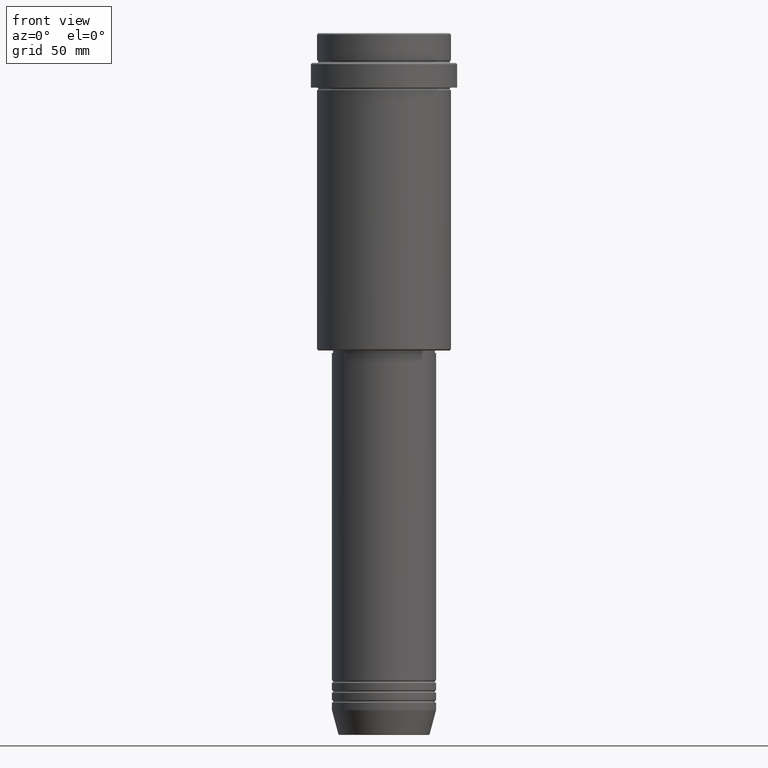
[diagram: clean part render]
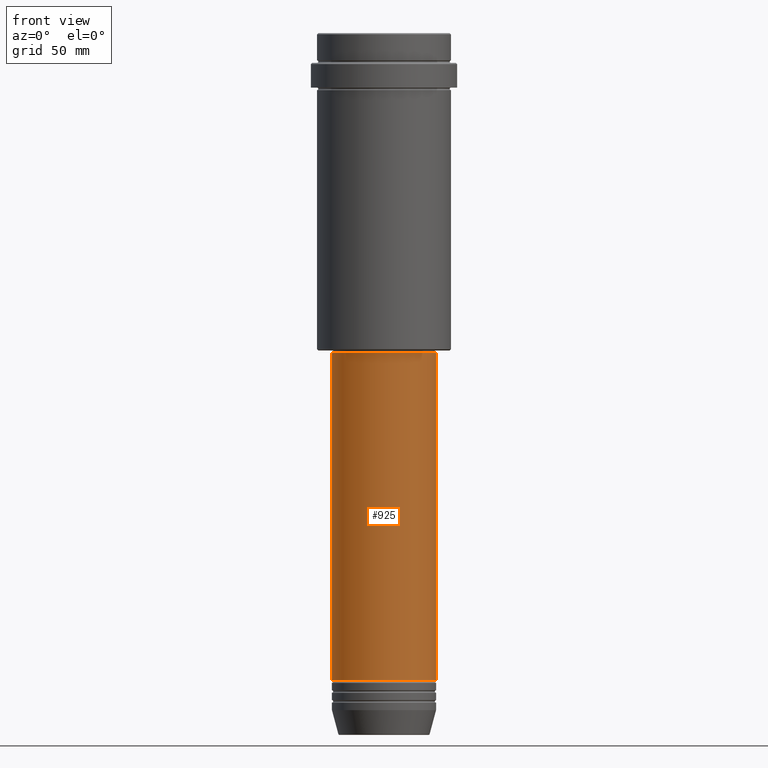
[diagram: same view with one face highlighted and labeled with its STEP entity id]
A machine part, front view. The second image highlights one B-rep face of the part: STEP entity #925.
In plain terms, the highlighted cylindrical surface (partial cylindrical patch) has radius 21 mm, axis along (-0, -0, 1).
Its self-contained STEP definition (entity closure, byte-faithful):
#67 = VECTOR ( 'NONE', #867, 1000.000000000000000 ) ;
#78 = ORIENTED_EDGE ( 'NONE', *, *, #741, .F. ) ;
#155 = CIRCLE ( 'NONE', #742, 21.00000000000000000 ) ;
#160 = CARTESIAN_POINT ( 'NONE',  ( -21.00000000000000000, 2.571758278209441661E-15, -129.0000000000000284 ) ) ;
#255 = VERTEX_POINT ( 'NONE', #1194 ) ;
#277 = DIRECTION ( 'NONE',  ( -0.000000000000000000, -0.000000000000000000, 1.000000000000000000 ) ) ;
#303 = EDGE_CURVE ( 'NONE', #331, #255, #359, .T. ) ;
#331 = VERTEX_POINT ( 'NONE', #545 ) ;
#343 = EDGE_CURVE ( 'NONE', #255, #788, #979, .T. ) ;
#359 = CIRCLE ( 'NONE', #473, 21.00000000000000000 ) ;
#394 = EDGE_CURVE ( 'NONE', #833, #788, #155, .T. ) ;
#431 = CARTESIAN_POINT ( 'NONE',  ( -21.00000000000000000, 2.571758278209441661E-15, 0.000000000000000000 ) ) ;
#439 = ORIENTED_EDGE ( 'NONE', *, *, #343, .T. ) ;
#440 = CARTESIAN_POINT ( 'NONE',  ( 21.00000000000000000, 0.000000000000000000, 0.000000000000000000 ) ) ;
#457 = CARTESIAN_POINT ( 'NONE',  ( 21.00000000000000000, 0.000000000000000000, -129.0000000000000284 ) ) ;
#470 = DIRECTION ( 'NONE',  ( 1.000000000000000000, 0.000000000000000000, 0.000000000000000000 ) ) ;
#473 = AXIS2_PLACEMENT_3D ( 'NONE', #1321, #1198, #770 ) ;
#484 = FACE_OUTER_BOUND ( 'NONE', #1207, .T. ) ;
#545 = CARTESIAN_POINT ( 'NONE',  ( -21.00000000000000000, 2.571758278209441661E-15, -260.9999999999998863 ) ) ;
#639 = ORIENTED_EDGE ( 'NONE', *, *, #394, .F. ) ;
#686 = CARTESIAN_POINT ( 'NONE',  ( 0.000000000000000000, 0.000000000000000000, -129.0000000000000284 ) ) ;
#707 = CYLINDRICAL_SURFACE ( 'NONE', #1083, 21.00000000000000000 ) ;
#741 = EDGE_CURVE ( 'NONE', #331, #833, #1408, .T. ) ;
#742 = AXIS2_PLACEMENT_3D ( 'NONE', #686, #277, #470 ) ;
#769 = DIRECTION ( 'NONE',  ( -0.000000000000000000, -0.000000000000000000, 1.000000000000000000 ) ) ;
#770 = DIRECTION ( 'NONE',  ( 1.000000000000000000, 0.000000000000000000, 0.000000000000000000 ) ) ;
#788 = VERTEX_POINT ( 'NONE', #457 ) ;
#792 = DIRECTION ( 'NONE',  ( -0.000000000000000000, -0.000000000000000000, 1.000000000000000000 ) ) ;
#804 = DIRECTION ( 'NONE',  ( 1.000000000000000000, 0.000000000000000000, 0.000000000000000000 ) ) ;
#833 = VERTEX_POINT ( 'NONE', #160 ) ;
#867 = DIRECTION ( 'NONE',  ( -0.000000000000000000, -0.000000000000000000, 1.000000000000000000 ) ) ;
#925 = ADVANCED_FACE ( 'NONE', ( #484 ), #707, .T. ) ;
#979 = LINE ( 'NONE', #440, #67 ) ;
#1003 = CARTESIAN_POINT ( 'NONE',  ( 0.000000000000000000, 0.000000000000000000, 0.000000000000000000 ) ) ;
#1083 = AXIS2_PLACEMENT_3D ( 'NONE', #1003, #792, #804 ) ;
#1172 = ORIENTED_EDGE ( 'NONE', *, *, #303, .T. ) ;
#1185 = VECTOR ( 'NONE', #769, 1000.000000000000000 ) ;
#1194 = CARTESIAN_POINT ( 'NONE',  ( 21.00000000000000000, 0.000000000000000000, -260.9999999999998863 ) ) ;
#1198 = DIRECTION ( 'NONE',  ( -0.000000000000000000, -0.000000000000000000, 1.000000000000000000 ) ) ;
#1207 = EDGE_LOOP ( 'NONE', ( #78, #1172, #439, #639 ) ) ;
#1321 = CARTESIAN_POINT ( 'NONE',  ( 0.000000000000000000, 0.000000000000000000, -260.9999999999998863 ) ) ;
#1408 = LINE ( 'NONE', #431, #1185 ) ;